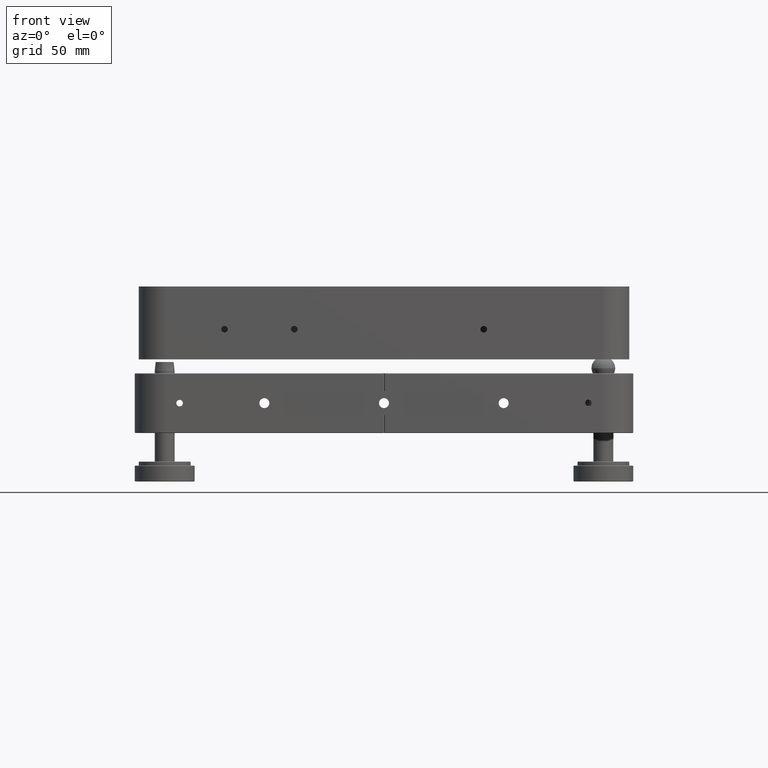
[diagram: clean part render]
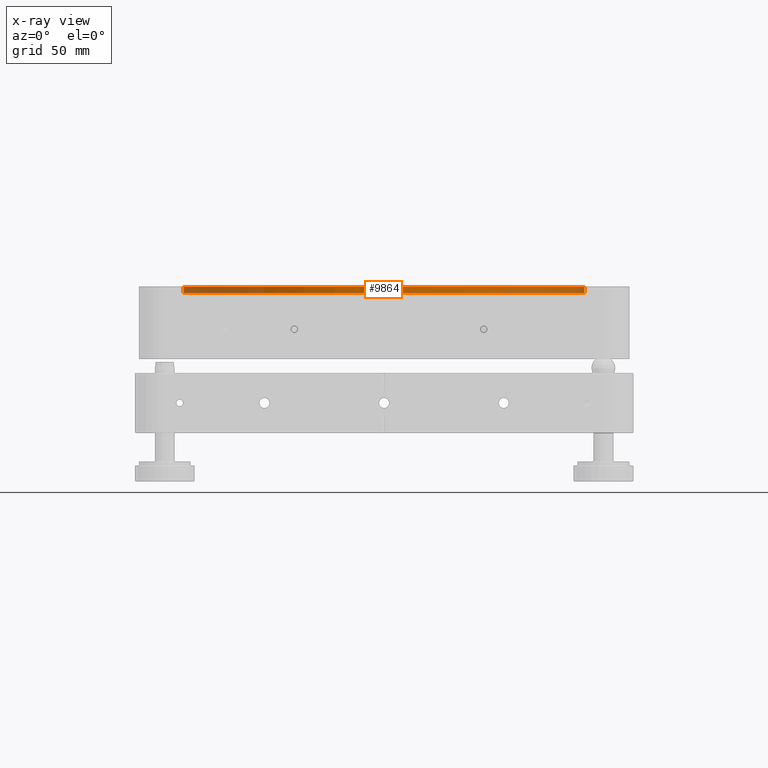
[diagram: x-ray — body ghosted, one internal face saturated and labeled with its STEP entity id]
A machine part, front view, then the same camera in x-ray: the body is ghosted and one INTERNAL B-rep face — a face not visible from any outside direction — is saturated and labeled: STEP entity #9864.
In plain terms, the highlighted cylindrical surface (partial cylindrical patch) has radius 100.5 mm, axis along (0, 0, 1).
Its self-contained STEP definition (entity closure, byte-faithful):
#244 = CARTESIAN_POINT ( 'NONE',  ( -225.4999999999988063, 124.9999999999991189, 55.22056274847702184 ) ) ;
#295 = CARTESIAN_POINT ( 'NONE',  ( -24.50179106073459323, 124.3999999999991104, 57.57056274847701616 ) ) ;
#715 = LINE ( 'NONE', #9263, #9865 ) ;
#981 = DIRECTION ( 'NONE',  ( 0.000000000000000000, 0.000000000000000000, 1.000000000000000000 ) ) ;
#997 = CARTESIAN_POINT ( 'NONE',  ( -225.4982089392629803, 124.3999999999991104, 57.57056274847701616 ) ) ;
#1193 = EDGE_CURVE ( 'NONE', #8990, #3785, #8663, .T. ) ;
#1805 = ORIENTED_EDGE ( 'NONE', *, *, #10751, .F. ) ;
#1950 = DIRECTION ( 'NONE',  ( 0.000000000000000000, -0.000000000000000000, -1.000000000000000000 ) ) ;
#2257 = AXIS2_PLACEMENT_3D ( 'NONE', #5923, #4908, #5859 ) ;
#2294 = CARTESIAN_POINT ( 'NONE',  ( -225.4999999999988063, 124.9999999999991189, 57.57056274847701616 ) ) ;
#2562 = CIRCLE ( 'NONE', #6203, 100.5000000000000000 ) ;
#2746 = DIRECTION ( 'NONE',  ( -0.000000000000000000, -0.000000000000000000, -1.000000000000000000 ) ) ;
#2758 = CARTESIAN_POINT ( 'NONE',  ( -24.49999999999878497, 124.9999999999991189, 54.97056274847700763 ) ) ;
#2774 = CARTESIAN_POINT ( 'NONE',  ( -124.9999999999987921, 124.9999999999991189, 58.22056274847705737 ) ) ;
#2785 = AXIS2_PLACEMENT_3D ( 'NONE', #2774, #12381, #11601 ) ;
#2974 = AXIS2_PLACEMENT_3D ( 'NONE', #8260, #12067, #6446 ) ;
#3785 = VERTEX_POINT ( 'NONE', #12290 ) ;
#4047 = EDGE_CURVE ( 'NONE', #4844, #5589, #715, .T. ) ;
#4356 = CYLINDRICAL_SURFACE ( 'NONE', #8808, 100.5000000000000000 ) ;
#4844 = VERTEX_POINT ( 'NONE', #244 ) ;
#4908 = DIRECTION ( 'NONE',  ( 0.000000000000000000, -0.000000000000000000, -1.000000000000000000 ) ) ;
#5479 = DIRECTION ( 'NONE',  ( 1.000000000000000000, 0.000000000000000000, 0.000000000000000000 ) ) ;
#5504 = CARTESIAN_POINT ( 'NONE',  ( -225.4982089392629803, 124.3999999999991104, 58.22056274847705737 ) ) ;
#5511 = DIRECTION ( 'NONE',  ( 0.000000000000000000, 0.000000000000000000, 1.000000000000000000 ) ) ;
#5589 = VERTEX_POINT ( 'NONE', #2294 ) ;
#5692 = EDGE_LOOP ( 'NONE', ( #11442, #12392, #5850, #7078, #8471, #12106, #1805, #6894 ) ) ;
#5850 = ORIENTED_EDGE ( 'NONE', *, *, #1193, .T. ) ;
#5859 = DIRECTION ( 'NONE',  ( 1.000000000000000000, 0.000000000000000000, 0.000000000000000000 ) ) ;
#5923 = CARTESIAN_POINT ( 'NONE',  ( -124.9999999999987921, 124.9999999999991189, 57.57056274847701616 ) ) ;
#5933 = VECTOR ( 'NONE', #2746, 1000.000000000000000 ) ;
#6203 = AXIS2_PLACEMENT_3D ( 'NONE', #11479, #1950, #9617 ) ;
#6212 = CIRCLE ( 'NONE', #2974, 100.5000000000000000 ) ;
#6446 = DIRECTION ( 'NONE',  ( 1.000000000000000000, 0.000000000000000000, 0.000000000000000000 ) ) ;
#6647 = CARTESIAN_POINT ( 'NONE',  ( -225.4982089392629803, 124.3999999999991104, 54.97056274847700763 ) ) ;
#6894 = ORIENTED_EDGE ( 'NONE', *, *, #9252, .T. ) ;
#7078 = ORIENTED_EDGE ( 'NONE', *, *, #7647, .T. ) ;
#7530 = CARTESIAN_POINT ( 'NONE',  ( -24.50179106073459323, 124.3999999999991104, 54.97056274847700763 ) ) ;
#7647 = EDGE_CURVE ( 'NONE', #3785, #12426, #8084, .T. ) ;
#7981 = CARTESIAN_POINT ( 'NONE',  ( -24.50179106073459323, 124.3999999999991104, 58.22056274847705737 ) ) ;
#8009 = CARTESIAN_POINT ( 'NONE',  ( -24.49999999999878497, 124.9999999999991189, 55.22056274847702184 ) ) ;
#8084 = CIRCLE ( 'NONE', #2257, 100.5000000000000000 ) ;
#8210 = CIRCLE ( 'NONE', #2785, 100.5000000000000000 ) ;
#8260 = CARTESIAN_POINT ( 'NONE',  ( -124.9999999999987921, 124.9999999999991189, 55.22056274847702184 ) ) ;
#8381 = CARTESIAN_POINT ( 'NONE',  ( -124.9999999999987921, 124.9999999999991189, 54.97056274847700763 ) ) ;
#8440 = FACE_OUTER_BOUND ( 'NONE', #5692, .T. ) ;
#8471 = ORIENTED_EDGE ( 'NONE', *, *, #10807, .F. ) ;
#8663 = LINE ( 'NONE', #2758, #9907 ) ;
#8808 = AXIS2_PLACEMENT_3D ( 'NONE', #8381, #10113, #5479 ) ;
#8990 = VERTEX_POINT ( 'NONE', #8009 ) ;
#9122 = VECTOR ( 'NONE', #10516, 1000.000000000000000 ) ;
#9252 = EDGE_CURVE ( 'NONE', #11119, #5589, #2562, .T. ) ;
#9263 = CARTESIAN_POINT ( 'NONE',  ( -225.4999999999988063, 124.9999999999991189, 54.97056274847700763 ) ) ;
#9306 = VERTEX_POINT ( 'NONE', #7981 ) ;
#9517 = LINE ( 'NONE', #6647, #9122 ) ;
#9617 = DIRECTION ( 'NONE',  ( 1.000000000000000000, 2.336439499584284795E-13, 0.000000000000000000 ) ) ;
#9629 = EDGE_CURVE ( 'NONE', #4844, #8990, #6212, .T. ) ;
#9864 = ADVANCED_FACE ( 'NONE', ( #8440 ), #4356, .T. ) ;
#9865 = VECTOR ( 'NONE', #5511, 1000.000000000000000 ) ;
#9907 = VECTOR ( 'NONE', #981, 1000.000000000000000 ) ;
#10113 = DIRECTION ( 'NONE',  ( 0.000000000000000000, 0.000000000000000000, 1.000000000000000000 ) ) ;
#10150 = EDGE_CURVE ( 'NONE', #9306, #11742, #8210, .T. ) ;
#10516 = DIRECTION ( 'NONE',  ( 0.000000000000000000, 0.000000000000000000, 1.000000000000000000 ) ) ;
#10751 = EDGE_CURVE ( 'NONE', #11119, #11742, #9517, .T. ) ;
#10807 = EDGE_CURVE ( 'NONE', #9306, #12426, #11258, .T. ) ;
#11119 = VERTEX_POINT ( 'NONE', #997 ) ;
#11258 = LINE ( 'NONE', #7530, #5933 ) ;
#11442 = ORIENTED_EDGE ( 'NONE', *, *, #4047, .F. ) ;
#11479 = CARTESIAN_POINT ( 'NONE',  ( -124.9999999999987921, 124.9999999999991189, 57.57056274847701616 ) ) ;
#11601 = DIRECTION ( 'NONE',  ( 1.000000000000000000, 0.000000000000000000, 0.000000000000000000 ) ) ;
#11742 = VERTEX_POINT ( 'NONE', #5504 ) ;
#12067 = DIRECTION ( 'NONE',  ( -0.000000000000000000, -0.000000000000000000, 1.000000000000000000 ) ) ;
#12106 = ORIENTED_EDGE ( 'NONE', *, *, #10150, .T. ) ;
#12290 = CARTESIAN_POINT ( 'NONE',  ( -24.49999999999878497, 124.9999999999991189, 57.57056274847701616 ) ) ;
#12381 = DIRECTION ( 'NONE',  ( 0.000000000000000000, 0.000000000000000000, -1.000000000000000000 ) ) ;
#12392 = ORIENTED_EDGE ( 'NONE', *, *, #9629, .T. ) ;
#12426 = VERTEX_POINT ( 'NONE', #295 ) ;